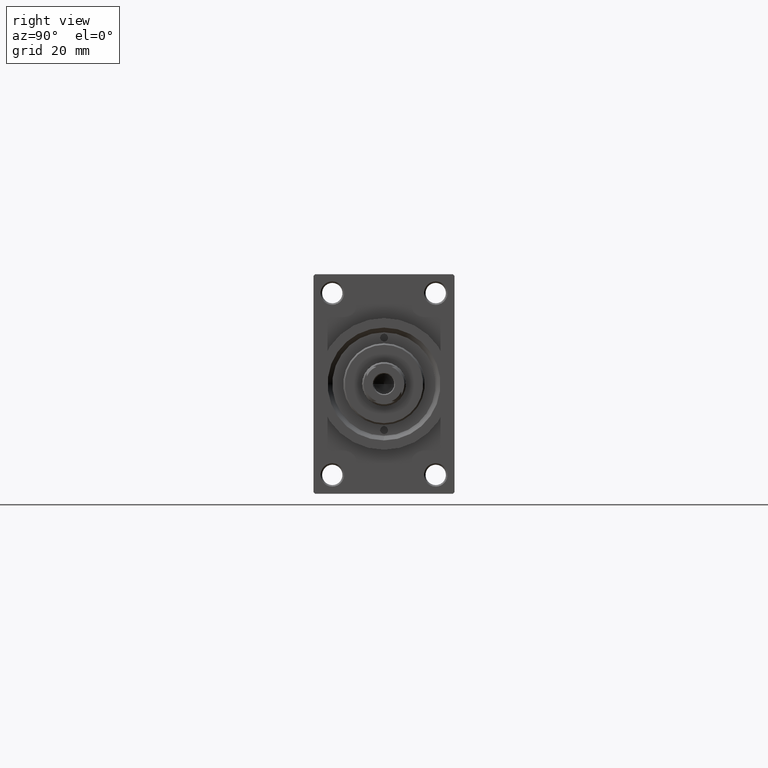
[diagram: clean part render]
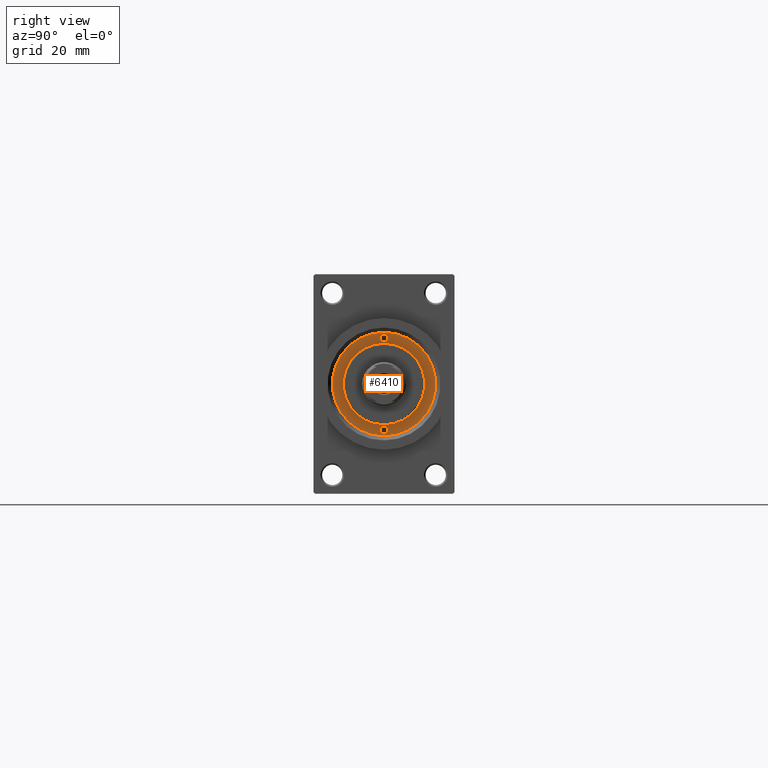
[diagram: same view with one face highlighted and labeled with its STEP entity id]
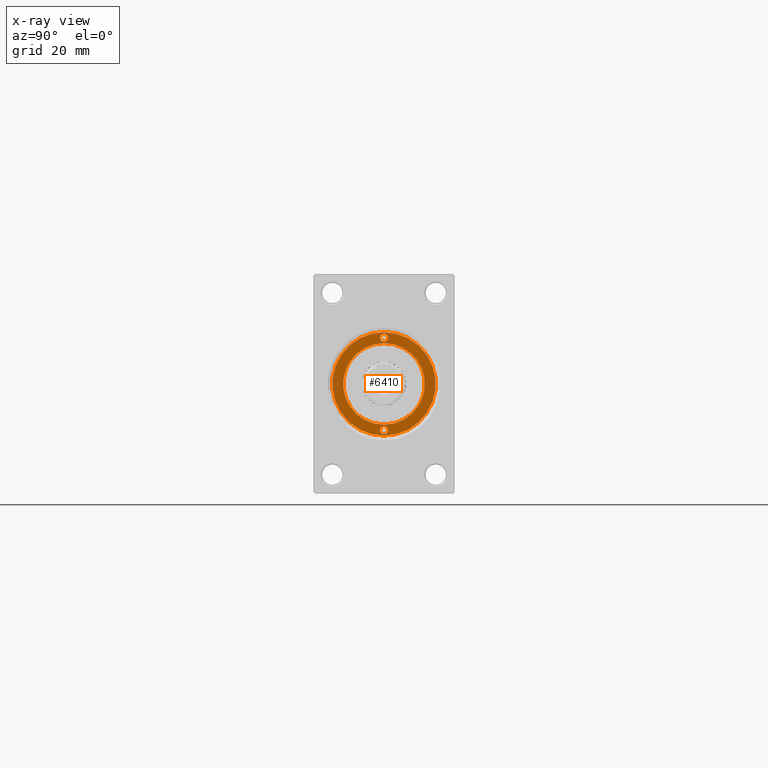
[diagram: x-ray of the same camera — body ghosted, the highlighted face saturated]
A machine part, right view. The second image highlights one B-rep face of the part: STEP entity #6410.
The next image is the same camera in x-ray: the body ghosted, the highlighted face saturated — about 0% of this face is hidden behind the body in this view.
In plain terms, the highlighted planar face has unit normal (1, -0, -0).
Its self-contained STEP definition (entity closure, byte-faithful):
#45 = DIRECTION ( 'NONE',  ( 1.000000000000000000, 0.000000000000000000, 0.000000000000000000 ) ) ;
#252 = FACE_BOUND ( 'NONE', #29165, .T. ) ;
#1241 = CARTESIAN_POINT ( 'NONE',  ( -13.00000000000000178, 0.000000000000000000, 43.25999999999999801 ) ) ;
#1433 = EDGE_CURVE ( 'NONE', #2991, #17522, #29599, .T. ) ;
#1815 = CARTESIAN_POINT ( 'NONE',  ( 13.00000000000000178, 1.592040838891559293E-15, 43.25999999999999801 ) ) ;
#2991 = VERTEX_POINT ( 'NONE', #20293 ) ;
#3917 = CARTESIAN_POINT ( 'NONE',  ( 14.75000000000000000, 0.000000000000000000, 43.25999999999999801 ) ) ;
#4026 = CIRCLE ( 'NONE', #36876, 16.50000000000000000 ) ;
#4565 = FACE_BOUND ( 'NONE', #14945, .T. ) ;
#5014 = VERTEX_POINT ( 'NONE', #6817 ) ;
#5467 = ORIENTED_EDGE ( 'NONE', *, *, #21875, .T. ) ;
#5780 = CIRCLE ( 'NONE', #11913, 1.249999999999997558 ) ;
#6410 = ADVANCED_FACE ( 'NONE', ( #4565, #40234, #252, #7452 ), #40471, .T. ) ;
#6817 = CARTESIAN_POINT ( 'NONE',  ( -13.50000000000000000, 0.000000000000000000, 43.25999999999999801 ) ) ;
#7023 = VERTEX_POINT ( 'NONE', #14018 ) ;
#7452 = FACE_OUTER_BOUND ( 'NONE', #24549, .T. ) ;
#7517 = DIRECTION ( 'NONE',  ( 1.000000000000000000, 0.000000000000000000, 0.000000000000000000 ) ) ;
#7683 = CARTESIAN_POINT ( 'NONE',  ( 0.000000000000000000, 0.000000000000000000, 43.25999999999999801 ) ) ;
#8479 = AXIS2_PLACEMENT_3D ( 'NONE', #36454, #14213, #45 ) ;
#8735 = CIRCLE ( 'NONE', #43090, 1.249999999999999334 ) ;
#8941 = DIRECTION ( 'NONE',  ( -0.000000000000000000, -0.000000000000000000, 1.000000000000000000 ) ) ;
#9202 = AXIS2_PLACEMENT_3D ( 'NONE', #42196, #8941, #24249 ) ;
#9800 = VERTEX_POINT ( 'NONE', #1241 ) ;
#9996 = ORIENTED_EDGE ( 'NONE', *, *, #13569, .T. ) ;
#10324 = ORIENTED_EDGE ( 'NONE', *, *, #25228, .F. ) ;
#10382 = DIRECTION ( 'NONE',  ( -0.000000000000000000, -0.000000000000000000, 1.000000000000000000 ) ) ;
#11182 = CARTESIAN_POINT ( 'NONE',  ( -14.75000000000000000, 0.000000000000000000, 43.25999999999999801 ) ) ;
#11813 = EDGE_CURVE ( 'NONE', #7023, #5014, #29842, .T. ) ;
#11913 = AXIS2_PLACEMENT_3D ( 'NONE', #20456, #10382, #36000 ) ;
#12402 = CIRCLE ( 'NONE', #27665, 13.00000000000000178 ) ;
#13569 = EDGE_CURVE ( 'NONE', #25525, #36882, #29116, .T. ) ;
#13941 = EDGE_LOOP ( 'NONE', ( #37781, #46227 ) ) ;
#14018 = CARTESIAN_POINT ( 'NONE',  ( -16.00000000000000000, 1.530808498934188859E-16, 43.25999999999999801 ) ) ;
#14213 = DIRECTION ( 'NONE',  ( 0.000000000000000000, 0.000000000000000000, 1.000000000000000000 ) ) ;
#14248 = DIRECTION ( 'NONE',  ( -0.000000000000000000, -0.000000000000000000, 1.000000000000000000 ) ) ;
#14280 = EDGE_CURVE ( 'NONE', #9800, #42900, #42878, .T. ) ;
#14945 = EDGE_LOOP ( 'NONE', ( #10324, #33470 ) ) ;
#15083 = AXIS2_PLACEMENT_3D ( 'NONE', #3917, #14248, #7517 ) ;
#15389 = AXIS2_PLACEMENT_3D ( 'NONE', #17223, #24620, #28682 ) ;
#17223 = CARTESIAN_POINT ( 'NONE',  ( 0.000000000000000000, 0.000000000000000000, 43.25999999999999801 ) ) ;
#17522 = VERTEX_POINT ( 'NONE', #39110 ) ;
#18891 = DIRECTION ( 'NONE',  ( 0.000000000000000000, 0.000000000000000000, 1.000000000000000000 ) ) ;
#19826 = EDGE_CURVE ( 'NONE', #42900, #9800, #12402, .T. ) ;
#20293 = CARTESIAN_POINT ( 'NONE',  ( 15.99999999999999645, 0.000000000000000000, 43.25999999999999801 ) ) ;
#20456 = CARTESIAN_POINT ( 'NONE',  ( 14.75000000000000000, 0.000000000000000000, 43.25999999999999801 ) ) ;
#21875 = EDGE_CURVE ( 'NONE', #36882, #25525, #4026, .T. ) ;
#24249 = DIRECTION ( 'NONE',  ( 1.000000000000000000, 0.000000000000000000, 0.000000000000000000 ) ) ;
#24549 = EDGE_LOOP ( 'NONE', ( #5467, #9996 ) ) ;
#24620 = DIRECTION ( 'NONE',  ( 0.000000000000000000, 0.000000000000000000, 1.000000000000000000 ) ) ;
#25228 = EDGE_CURVE ( 'NONE', #5014, #7023, #8735, .T. ) ;
#25525 = VERTEX_POINT ( 'NONE', #40558 ) ;
#25781 = DIRECTION ( 'NONE',  ( 1.000000000000000000, 0.000000000000000000, 0.000000000000000000 ) ) ;
#26119 = DIRECTION ( 'NONE',  ( 1.000000000000000000, 0.000000000000000000, -0.000000000000000000 ) ) ;
#27665 = AXIS2_PLACEMENT_3D ( 'NONE', #41358, #18891, #44470 ) ;
#27713 = ORIENTED_EDGE ( 'NONE', *, *, #19826, .F. ) ;
#28682 = DIRECTION ( 'NONE',  ( 1.000000000000000000, 0.000000000000000000, 0.000000000000000000 ) ) ;
#29116 = CIRCLE ( 'NONE', #8479, 16.50000000000000000 ) ;
#29165 = EDGE_LOOP ( 'NONE', ( #34356, #27713 ) ) ;
#29599 = CIRCLE ( 'NONE', #15083, 1.249999999999997558 ) ;
#29750 = DIRECTION ( 'NONE',  ( 1.000000000000000000, 0.000000000000000000, 0.000000000000000000 ) ) ;
#29842 = CIRCLE ( 'NONE', #9202, 1.249999999999999334 ) ;
#30066 = EDGE_CURVE ( 'NONE', #17522, #2991, #5780, .T. ) ;
#33225 = CARTESIAN_POINT ( 'NONE',  ( -16.50000000000000000, 0.000000000000000000, 43.25999999999999801 ) ) ;
#33470 = ORIENTED_EDGE ( 'NONE', *, *, #11813, .F. ) ;
#34356 = ORIENTED_EDGE ( 'NONE', *, *, #14280, .F. ) ;
#36000 = DIRECTION ( 'NONE',  ( 1.000000000000000000, 0.000000000000000000, 0.000000000000000000 ) ) ;
#36452 = CARTESIAN_POINT ( 'NONE',  ( 0.000000000000000000, 0.000000000000000000, 43.25999999999999801 ) ) ;
#36454 = CARTESIAN_POINT ( 'NONE',  ( 0.000000000000000000, 0.000000000000000000, 43.25999999999999801 ) ) ;
#36876 = AXIS2_PLACEMENT_3D ( 'NONE', #36452, #43626, #29750 ) ;
#36882 = VERTEX_POINT ( 'NONE', #33225 ) ;
#37614 = DIRECTION ( 'NONE',  ( 0.000000000000000000, 0.000000000000000000, 1.000000000000000000 ) ) ;
#37781 = ORIENTED_EDGE ( 'NONE', *, *, #1433, .F. ) ;
#39110 = CARTESIAN_POINT ( 'NONE',  ( 13.50000000000000178, 1.530808498934188612E-16, 43.25999999999999801 ) ) ;
#40234 = FACE_BOUND ( 'NONE', #13941, .T. ) ;
#40471 = PLANE ( 'NONE',  #44930 ) ;
#40558 = CARTESIAN_POINT ( 'NONE',  ( 16.50000000000000000, 2.020667218593133100E-15, 43.25999999999999801 ) ) ;
#40849 = DIRECTION ( 'NONE',  ( -0.000000000000000000, -0.000000000000000000, 1.000000000000000000 ) ) ;
#41358 = CARTESIAN_POINT ( 'NONE',  ( 0.000000000000000000, 0.000000000000000000, 43.25999999999999801 ) ) ;
#42196 = CARTESIAN_POINT ( 'NONE',  ( -14.75000000000000000, 0.000000000000000000, 43.25999999999999801 ) ) ;
#42878 = CIRCLE ( 'NONE', #15389, 13.00000000000000178 ) ;
#42900 = VERTEX_POINT ( 'NONE', #1815 ) ;
#43090 = AXIS2_PLACEMENT_3D ( 'NONE', #11182, #40849, #25781 ) ;
#43626 = DIRECTION ( 'NONE',  ( 0.000000000000000000, 0.000000000000000000, 1.000000000000000000 ) ) ;
#44470 = DIRECTION ( 'NONE',  ( 1.000000000000000000, 0.000000000000000000, 0.000000000000000000 ) ) ;
#44930 = AXIS2_PLACEMENT_3D ( 'NONE', #7683, #37614, #26119 ) ;
#46227 = ORIENTED_EDGE ( 'NONE', *, *, #30066, .F. ) ;